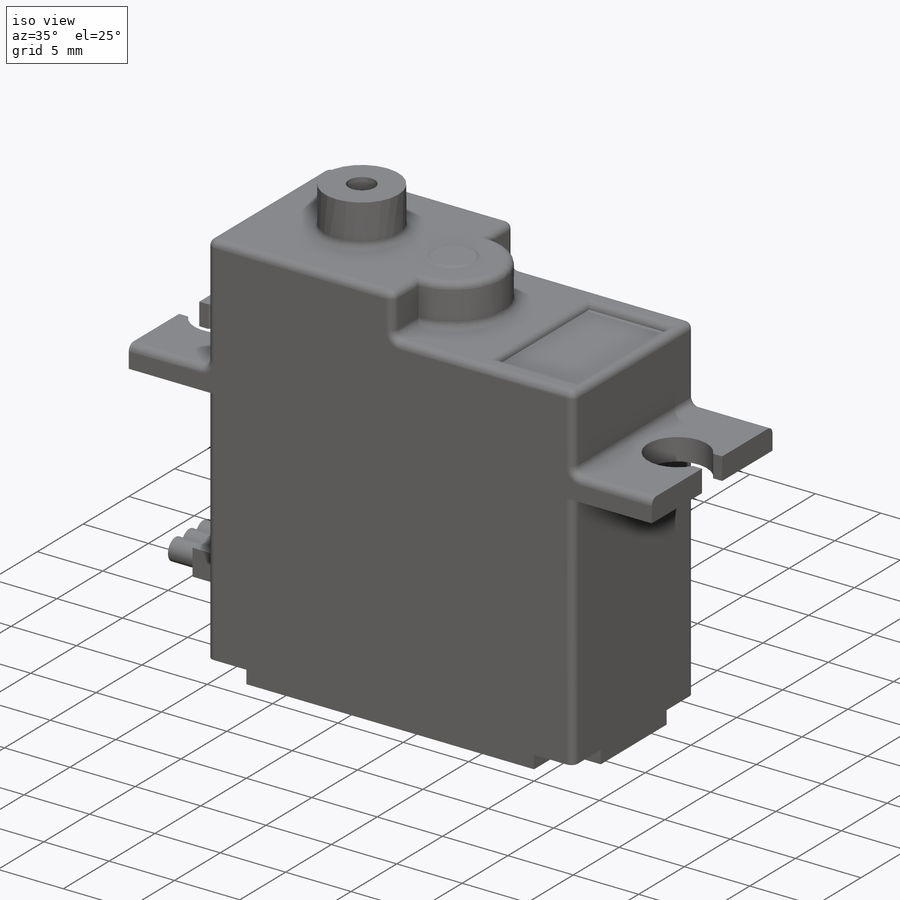
[diagram: iso view]
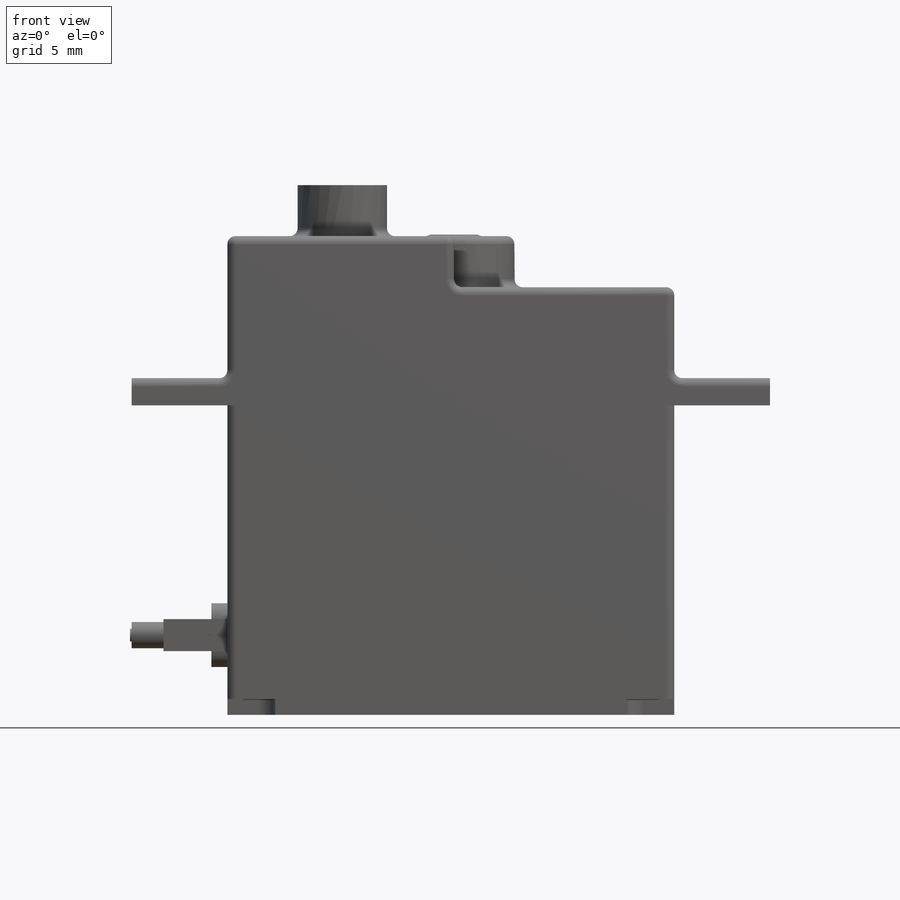
[diagram: front view]
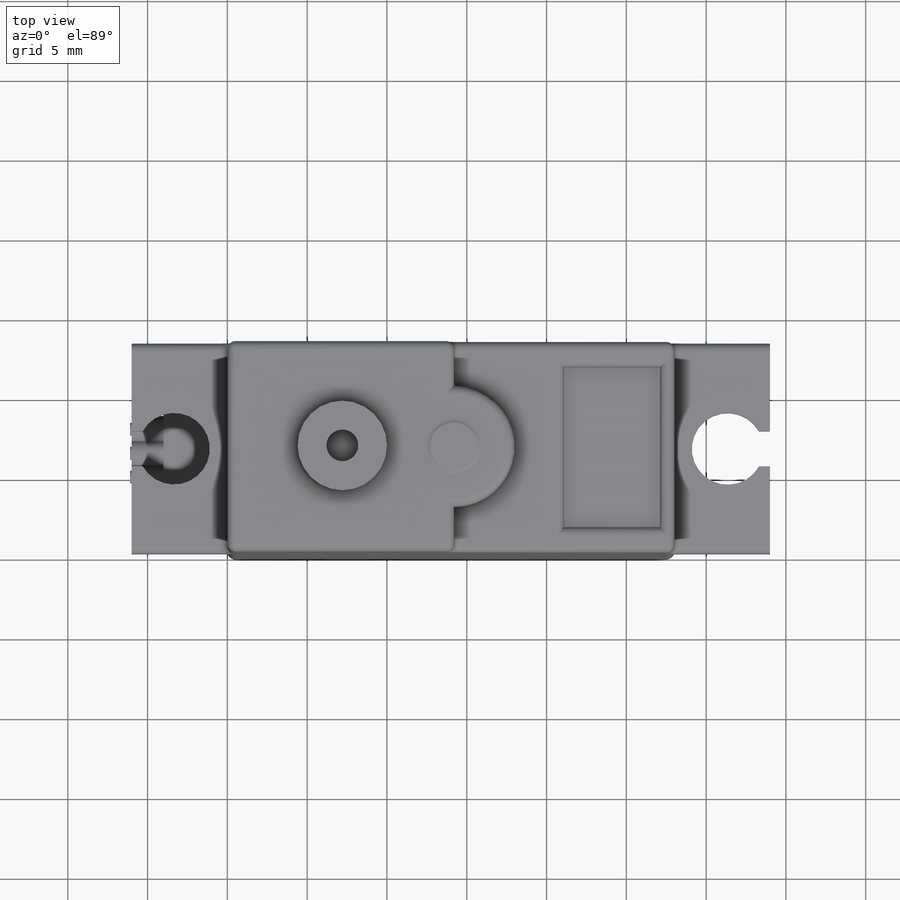
[diagram: top view]
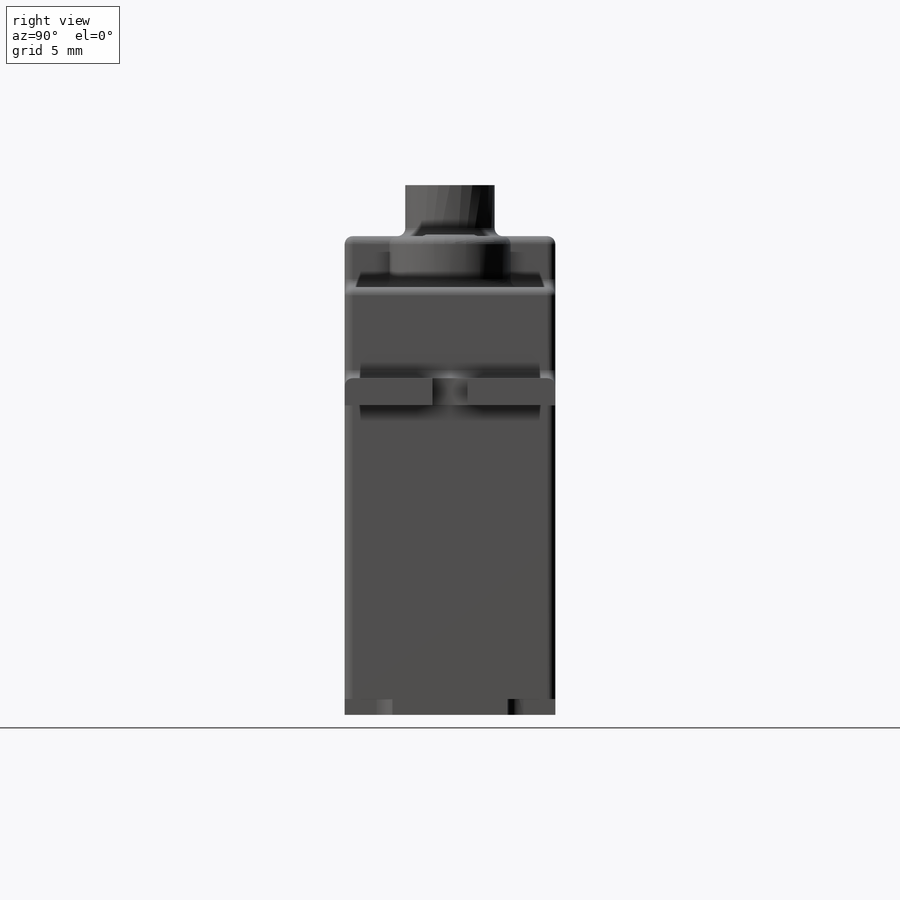
[diagram: right view]
SOLIDWORKS PART (.sldprt)
format: sldprt  version: not decoded by parser v0  size: 536,576 bytes
history: native  units: mm
features: sketch x13, extrude x9, cut_extrude x4, fillet x4, plane x3, material x1 (+9 scaffold rows collapsed)
feature tree (43):
  scaffold x9  (default folders/planes/origin — collapsed)
  material  "Malzeme <belirli değil>"
  plane  "Ön Düzlem"
  plane  "Üst Düzlem"
  plane  "Sağ Düzlem"
  sketch  "Çizim1"  dims[D1=28.0mm D2=13.2mm]
  extrude  "Yükseklik-Ekstrüzyon1"  Depth=26.8mm
  sketch  "Çizim2"  dims[D1=3.0mm D2=3.0mm]
  cut_extrude  "Kes-Ekstrüzyon1"  Depth=1mm
  fillet  "Radyus1"  Radius=1mm
  sketch  "Çizim3"  dims[D1=7.0mm D2=6.5mm D3=4.0mm D4=3.25mm]
  extrude  "Yükseklik-Ekstrüzyon2"  Depth=4mm
  fillet  "Radyus2"  Radius=1mm
  sketch  "Çizim4"  dims[D1=1.7mm D2=19.4mm]
  extrude  "Yükseklik-Ekstrüzyon3"  Depth=6mm
  sketch  "Çizim5"  dims[D1=1.7mm D2=19.4mm]
  extrude  "Yükseklik-Ekstrüzyon4"  Depth=6mm
  fillet  "Radyus3"  Radius=0.5mm
  sketch  "Çizim6"  dims[c1.D3=~2.035844mm c1.D1=5.5mm c1.D2=5.5mm c2.D3=3.35mm c2.D4=~0.010775mm]
  cut_extrude  "Kes-Ekstrüzyon3"  Depth=2mm
  sketch  "Çizim7"  dims[D2=7.6mm D1=14.2mm]
  extrude  "Yükseklik-Ekstrüzyon6"  Depth=3.2mm
  sketch  "Çizim8"  dims[D1=1.1474mm]
  extrude  "Yükseklik-Ekstrüzyon7"  Depth=0.1mm
  sketch  "Çizim9"  dims[c1.D1=~3.060304mm c1.D2=~0.853761mm c2.D1=7.2mm]
  extrude  "Yükseklik-Ekstrüzyon8"  Depth=3.2mm
  sketch  "Çizim11"  dims[D1=10.0mm D2=6.0mm D3=5.0mm]
  cut_extrude  "Kes-Ekstrüzyon7"  Depth=0.5mm
  fillet  "Radyus4"  Radius=0.5mm
  sketch  "Çizim14"  dims[D1=2.5mm D2=5.0mm D3=2.0mm D4=1.0mm]
  cut_extrude  "Kes-Ekstrüzyon8"  Depth=3mm
  sketch  "Çizim15"  dims[c1.D1=1.65mm c1.D2=1.65mm c1.D4=1.65mm c2.D1=0.5mm c2.D2=0.5mm c2.D3=1.5mm c2.D5=1.5mm]
  extrude  "Yükseklik-Ekstrüzyon9"  Depth=2mm
  sketch  "Çizim17"  dims[D1=~0.160932mm]
  extrude  "Yükseklik-Ekstrüzyon10"  Depth=0.1mm
decode coverage: 30 of 30 modeling features carry decoded parameters
note: ~ marks probable driven/reference dimensions
note: suppression state not decoded; provenance and decode notes live in map.json
